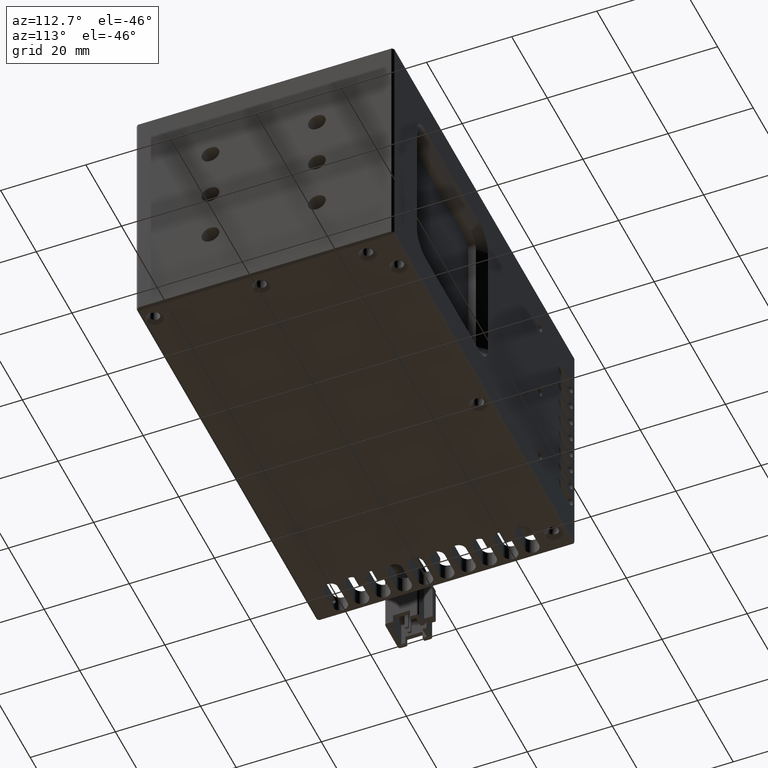
[diagram: clean part render]
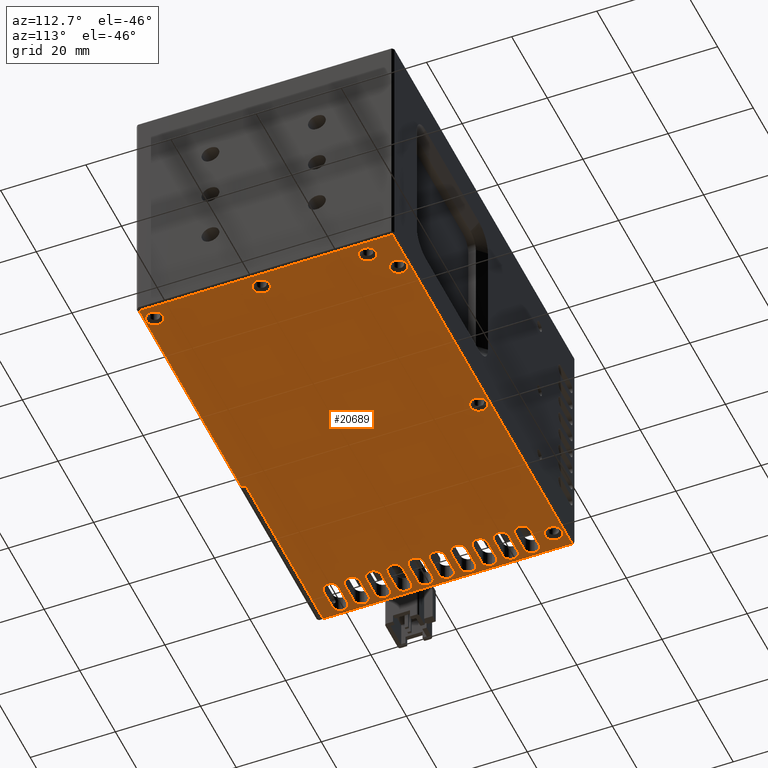
[diagram: same view with one face highlighted and labeled with its STEP entity id]
A machine part, auxiliary view. The second image highlights one B-rep face of the part: STEP entity #20689.
In plain terms, the highlighted planar face has unit normal (0, -0, 1).
Its self-contained STEP definition (entity closure, byte-faithful):
#267 = CIRCLE ( 'NONE', #56702, 1.750000000000001600 ) ;
#623 = DIRECTION ( 'NONE',  ( -0.0000000000000000000, -0.0000000000000000000, -1.000000000000000000 ) ) ;
#753 = AXIS2_PLACEMENT_3D ( 'NONE', #66108, #35379, #3601 ) ;
#942 = EDGE_CURVE ( 'NONE', #55779, #46142, #4437, .T. ) ;
#1028 = CARTESIAN_POINT ( 'NONE',  ( -68.07424922391150800, -6.223006669097374700, 9.533545556727335300E-012 ) ) ;
#1100 = DIRECTION ( 'NONE',  ( -0.0000000000000000000, -0.0000000000000000000, -1.000000000000000000 ) ) ;
#1269 = CARTESIAN_POINT ( 'NONE',  ( 32.92575077608847800, -7.223006669097346200, 9.549649598718879800E-012 ) ) ;
#1517 = VECTOR ( 'NONE', #17927, 1000.000000000000000 ) ;
#1585 = VECTOR ( 'NONE', #4886, 1000.000000000000000 ) ;
#1637 = DIRECTION ( 'NONE',  ( -0.0000000000000000000, -0.0000000000000000000, -1.000000000000000000 ) ) ;
#1683 = EDGE_CURVE ( 'NONE', #29605, #17996, #48271, .T. ) ;
#2033 = LINE ( 'NONE', #61198, #42651 ) ;
#2352 = VERTEX_POINT ( 'NONE', #14148 ) ;
#2480 = DIRECTION ( 'NONE',  ( -1.000000000000000000, 0.0000000000000000000, 0.0000000000000000000 ) ) ;
#2503 = CARTESIAN_POINT ( 'NONE',  ( -60.57424922391150800, 30.52599333090263700, 9.549652735252323100E-012 ) ) ;
#2550 = EDGE_CURVE ( 'NONE', #10588, #12224, #54571, .T. ) ;
#2566 = DIRECTION ( 'NONE',  ( 0.0000000000000000000, 0.0000000000000000000, -1.000000000000000000 ) ) ;
#2744 = VECTOR ( 'NONE', #6374, 1000.000000000000000 ) ;
#2750 = DIRECTION ( 'NONE',  ( -1.000000000000000000, 0.0000000000000000000, 0.0000000000000000000 ) ) ;
#2850 = EDGE_CURVE ( 'NONE', #59044, #53423, #51195, .T. ) ;
#2925 = EDGE_LOOP ( 'NONE', ( #24620, #66011, #63525, #28401, #41255 ) ) ;
#2929 = FACE_BOUND ( 'NONE', #62688, .T. ) ;
#3241 = LINE ( 'NONE', #26027, #1585 ) ;
#3327 = CARTESIAN_POINT ( 'NONE',  ( -60.57424922391150800, 12.02599333090263300, 9.549652735252323100E-012 ) ) ;
#3351 = VECTOR ( 'NONE', #52344, 1000.000000000000000 ) ;
#3458 = VERTEX_POINT ( 'NONE', #19029 ) ;
#3553 = LINE ( 'NONE', #15071, #59944 ) ;
#3601 = DIRECTION ( 'NONE',  ( -1.000000000000000000, 0.0000000000000000000, 0.0000000000000000000 ) ) ;
#3691 = VERTEX_POINT ( 'NONE', #68624 ) ;
#3858 = DIRECTION ( 'NONE',  ( -0.0000000000000000000, -0.0000000000000000000, -1.000000000000000000 ) ) ;
#4203 = DIRECTION ( 'NONE',  ( 1.000000000000000000, 0.0000000000000000000, -0.0000000000000000000 ) ) ;
#4221 = DIRECTION ( 'NONE',  ( -1.000000000000000000, -0.0000000000000000000, 0.0000000000000000000 ) ) ;
#4249 = VECTOR ( 'NONE', #42684, 1000.000000000000000 ) ;
#4316 = EDGE_CURVE ( 'NONE', #17996, #26201, #28529, .T. ) ;
#4322 = EDGE_CURVE ( 'NONE', #45477, #20638, #267, .T. ) ;
#4437 = LINE ( 'NONE', #64472, #2744 ) ;
#4555 = DIRECTION ( 'NONE',  ( -0.0000000000000000000, -0.0000000000000000000, -1.000000000000000000 ) ) ;
#4619 = FACE_BOUND ( 'NONE', #30308, .T. ) ;
#4680 = CARTESIAN_POINT ( 'NONE',  ( -65.57424922391152200, 43.77599333090263700, 9.549652735252323100E-012 ) ) ;
#4681 = VERTEX_POINT ( 'NONE', #21562 ) ;
#4886 = DIRECTION ( 'NONE',  ( -1.000000000000000000, -0.0000000000000000000, 0.0000000000000000000 ) ) ;
#4941 = DIRECTION ( 'NONE',  ( -1.000000000000000000, 0.0000000000000000000, 0.0000000000000000000 ) ) ;
#5003 = CARTESIAN_POINT ( 'NONE',  ( 33.42575077608847800, 30.52599333090263700, 9.549652735252323100E-012 ) ) ;
#5240 = ORIENTED_EDGE ( 'NONE', *, *, #1683, .F. ) ;
#5348 = CARTESIAN_POINT ( 'NONE',  ( 33.42575077608847800, -7.223006669097340900, 9.549652735252323100E-012 ) ) ;
#5393 = EDGE_LOOP ( 'NONE', ( #22655, #53234, #17202, #32842, #47921 ) ) ;
#5615 = AXIS2_PLACEMENT_3D ( 'NONE', #11265, #48338, #16612 ) ;
#5814 = ORIENTED_EDGE ( 'NONE', *, *, #59634, .F. ) ;
#5881 = CARTESIAN_POINT ( 'NONE',  ( -60.57424922391152200, 43.77599333090263700, 9.549652735252323100E-012 ) ) ;
#6099 = AXIS2_PLACEMENT_3D ( 'NONE', #26971, #63939, #32310 ) ;
#6306 = FACE_BOUND ( 'NONE', #59860, .T. ) ;
#6374 = DIRECTION ( 'NONE',  ( 1.000000000000000000, 0.0000000000000000000, -0.0000000000000000000 ) ) ;
#6607 = DIRECTION ( 'NONE',  ( 0.0000000000000000000, 0.0000000000000000000, -1.000000000000000000 ) ) ;
#6689 = AXIS2_PLACEMENT_3D ( 'NONE', #20414, #57332, #25745 ) ;
#6810 = CARTESIAN_POINT ( 'NONE',  ( 29.42575077608847100, 20.02699333090263400, 9.549652735252323100E-012 ) ) ;
#7153 = CARTESIAN_POINT ( 'NONE',  ( 31.42575077600345100, -4.973006669097366700, 9.549652735252323100E-012 ) ) ;
#7241 = CIRCLE ( 'NONE', #53216, 1.750000000000001600 ) ;
#7382 = EDGE_CURVE ( 'NONE', #54615, #34028, #14279, .T. ) ;
#7575 = EDGE_CURVE ( 'NONE', #36360, #43227, #17591, .T. ) ;
#7586 = CARTESIAN_POINT ( 'NONE',  ( -65.57424922391152200, 2.025993330902632100, 9.547050650038357800E-012 ) ) ;
#7690 = AXIS2_PLACEMENT_3D ( 'NONE', #55993, #24375, #61339 ) ;
#7713 = EDGE_CURVE ( 'NONE', #51562, #38337, #19223, .T. ) ;
#7824 = ORIENTED_EDGE ( 'NONE', *, *, #7382, .F. ) ;
#8075 = AXIS2_PLACEMENT_3D ( 'NONE', #47694, #15949, #52983 ) ;
#8123 = CIRCLE ( 'NONE', #14190, 1.750000000000001600 ) ;
#8278 = LINE ( 'NONE', #67654, #34854 ) ;
#8352 = EDGE_LOOP ( 'NONE', ( #64469, #46549, #31768, #10179, #49542 ) ) ;
#8439 = ORIENTED_EDGE ( 'NONE', *, *, #37372, .F. ) ;
#8567 = CIRCLE ( 'NONE', #8075, 1.750000000000001600 ) ;
#8569 = DIRECTION ( 'NONE',  ( -1.000000000000000000, -0.0000000000000000000, 0.0000000000000000000 ) ) ;
#8665 = CARTESIAN_POINT ( 'NONE',  ( -65.57424922391152200, 28.77599333090263700, 9.547918011776346200E-012 ) ) ;
#8979 = EDGE_CURVE ( 'NONE', #46945, #23181, #19878, .T. ) ;
#9085 = CIRCLE ( 'NONE', #54839, 1.750000000000001600 ) ;
#9102 = CARTESIAN_POINT ( 'NONE',  ( -60.57424922391150800, 20.52599333090263300, 9.549652735252323100E-012 ) ) ;
#9104 = ORIENTED_EDGE ( 'NONE', *, *, #21861, .F. ) ;
#9383 = CARTESIAN_POINT ( 'NONE',  ( -65.57424922391152200, 7.025993330902629500, 9.547918011776346200E-012 ) ) ;
#9571 = CARTESIAN_POINT ( 'NONE',  ( -65.57424922391152200, 38.77599333090265100, 9.549652735252323100E-012 ) ) ;
#9700 = ORIENTED_EDGE ( 'NONE', *, *, #14461, .F. ) ;
#9712 = CIRCLE ( 'NONE', #19497, 1.750000000000001600 ) ;
#9897 = AXIS2_PLACEMENT_3D ( 'NONE', #49309, #17623, #54643 ) ;
#10012 = DIRECTION ( 'NONE',  ( -1.000000000000000000, 0.0000000000000000000, 0.0000000000000000000 ) ) ;
#10111 = VECTOR ( 'NONE', #16703, 1000.000000000000000 ) ;
#10121 = ORIENTED_EDGE ( 'NONE', *, *, #63739, .F. ) ;
#10160 = CARTESIAN_POINT ( 'NONE',  ( -65.57424922391152200, 32.02599333090262900, 9.548785373514334700E-012 ) ) ;
#10179 = ORIENTED_EDGE ( 'NONE', *, *, #40360, .F. ) ;
#10292 = EDGE_CURVE ( 'NONE', #36276, #33469, #65688, .T. ) ;
#10493 = DIRECTION ( 'NONE',  ( 1.000000000000000000, 0.0000000000000000000, -0.0000000000000000000 ) ) ;
#10501 = VECTOR ( 'NONE', #27479, 1000.000000000000000 ) ;
#10588 = VERTEX_POINT ( 'NONE', #35153 ) ;
#10597 = CIRCLE ( 'NONE', #36223, 1.999999999875865100 ) ;
#10614 = CARTESIAN_POINT ( 'NONE',  ( -60.57424922391150800, 25.52599333090264000, 9.549652735252323100E-012 ) ) ;
#11101 = ORIENTED_EDGE ( 'NONE', *, *, #60726, .F. ) ;
#11122 = DIRECTION ( 'NONE',  ( -0.0000000000000000000, -0.0000000000000000000, -1.000000000000000000 ) ) ;
#11126 = DIRECTION ( 'NONE',  ( -0.0000000000000000000, -0.0000000000000000000, -1.000000000000000000 ) ) ;
#11155 = DIRECTION ( 'NONE',  ( -1.000000000000000000, 0.0000000000000000000, 0.0000000000000000000 ) ) ;
#11265 = CARTESIAN_POINT ( 'NONE',  ( -60.57424922391150800, 23.77599333090263700, 9.549652735252323100E-012 ) ) ;
#11429 = EDGE_CURVE ( 'NONE', #43975, #64879, #59957, .T. ) ;
#11517 = AXIS2_PLACEMENT_3D ( 'NONE', #38362, #6607, #43640 ) ;
#11520 = EDGE_CURVE ( 'NONE', #31445, #52103, #54077, .T. ) ;
#11541 = AXIS2_PLACEMENT_3D ( 'NONE', #5881, #42896, #11155 ) ;
#11591 = EDGE_LOOP ( 'NONE', ( #40319, #67665, #27790, #33439, #59176, #65654 ) ) ;
#11982 = LINE ( 'NONE', #26326, #38532 ) ;
#12049 = VERTEX_POINT ( 'NONE', #7586 ) ;
#12078 = EDGE_LOOP ( 'NONE', ( #13416, #51628 ) ) ;
#12112 = DIRECTION ( 'NONE',  ( -1.000000000000000000, 0.0000000000000000000, 0.0000000000000000000 ) ) ;
#12224 = VERTEX_POINT ( 'NONE', #18878 ) ;
#12280 = DIRECTION ( 'NONE',  ( -0.0000000000000000000, -0.0000000000000000000, -1.000000000000000000 ) ) ;
#12286 = CARTESIAN_POINT ( 'NONE',  ( 33.42575077608847800, 42.02599333090263700, 9.549652735252323100E-012 ) ) ;
#12457 = AXIS2_PLACEMENT_3D ( 'NONE', #55480, #23839, #60785 ) ;
#12506 = CARTESIAN_POINT ( 'NONE',  ( -65.57424922391152200, 42.02599333090263700, 9.549652735252323100E-012 ) ) ;
#12515 = EDGE_CURVE ( 'NONE', #57819, #4681, #3241, .T. ) ;
#12540 = CARTESIAN_POINT ( 'NONE',  ( 33.42575077608847800, 2.025993330902632100, 9.549652735252323100E-012 ) ) ;
#12645 = AXIS2_PLACEMENT_3D ( 'NONE', #23314, #60274, #28553 ) ;
#12838 = CARTESIAN_POINT ( 'NONE',  ( -23.57424922387105300, 49.77699333090261300, 6.639307159606033800E-011 ) ) ;
#12997 = DIRECTION ( 'NONE',  ( 0.0000000000000000000, 0.0000000000000000000, -1.000000000000000000 ) ) ;
#13104 = DIRECTION ( 'NONE',  ( -1.224646799147353500E-016, 1.000000000000000000, 0.0000000000000000000 ) ) ;
#13230 = VERTEX_POINT ( 'NONE', #1028 ) ;
#13267 = DIRECTION ( 'NONE',  ( 1.000000000000000000, 0.0000000000000000000, -0.0000000000000000000 ) ) ;
#13327 = EDGE_CURVE ( 'NONE', #54412, #26223, #60932, .T. ) ;
#13416 = ORIENTED_EDGE ( 'NONE', *, *, #13327, .F. ) ;
#13731 = CIRCLE ( 'NONE', #24533, 1.750000000000001600 ) ;
#13949 = VECTOR ( 'NONE', #22558, 1000.000000000000000 ) ;
#13995 = DIRECTION ( 'NONE',  ( -1.000000000000000000, 0.0000000000000000000, 0.0000000000000000000 ) ) ;
#14068 = EDGE_CURVE ( 'NONE', #64289, #24118, #3553, .T. ) ;
#14148 = CARTESIAN_POINT ( 'NONE',  ( -67.32424922391152200, 13.77599333090263500, 9.546183288300369400E-012 ) ) ;
#14190 = AXIS2_PLACEMENT_3D ( 'NONE', #31486, #68453, #36787 ) ;
#14279 = CIRCLE ( 'NONE', #16729, 1.999999999959541000 ) ;
#14461 = EDGE_CURVE ( 'NONE', #52432, #3691, #25204, .T. ) ;
#14630 = CARTESIAN_POINT ( 'NONE',  ( -60.57424922391150800, 5.525993330902634800, 9.549652735252323100E-012 ) ) ;
#14796 = ORIENTED_EDGE ( 'NONE', *, *, #24112, .F. ) ;
#14928 = DIRECTION ( 'NONE',  ( -1.000000000000000000, 0.0000000000000000000, 0.0000000000000000000 ) ) ;
#14982 = EDGE_CURVE ( 'NONE', #51055, #30000, #34150, .T. ) ;
#15071 = CARTESIAN_POINT ( 'NONE',  ( 32.92575077608847800, 52.77699333090263400, 9.549652735252323100E-012 ) ) ;
#15197 = EDGE_CURVE ( 'NONE', #33230, #17917, #33238, .T. ) ;
#15626 = CIRCLE ( 'NONE', #32279, 1.999999999914969100 ) ;
#15685 = CARTESIAN_POINT ( 'NONE',  ( -65.57424922391152200, 25.52599333090264000, 9.548785373514334700E-012 ) ) ;
#15861 = CARTESIAN_POINT ( 'NONE',  ( -67.32424922391152200, 8.775993330902631200, 9.546183288300369400E-012 ) ) ;
#15949 = DIRECTION ( 'NONE',  ( -0.0000000000000000000, -0.0000000000000000000, -1.000000000000000000 ) ) ;
#15993 = DIRECTION ( 'NONE',  ( 1.000000000000000000, 0.0000000000000000000, -0.0000000000000000000 ) ) ;
#16048 = ORIENTED_EDGE ( 'NONE', *, *, #32048, .F. ) ;
#16123 = CARTESIAN_POINT ( 'NONE',  ( -65.57424922391152200, 37.02599333090262900, 9.549652735252323100E-012 ) ) ;
#16364 = ORIENTED_EDGE ( 'NONE', *, *, #64023, .F. ) ;
#16405 = VERTEX_POINT ( 'NONE', #15861 ) ;
#16456 = CARTESIAN_POINT ( 'NONE',  ( 33.42575077608847800, 12.02599333090263300, 9.549652735252323100E-012 ) ) ;
#16612 = DIRECTION ( 'NONE',  ( -1.000000000000000000, 0.0000000000000000000, 0.0000000000000000000 ) ) ;
#16703 = DIRECTION ( 'NONE',  ( -1.000000000000000000, -0.0000000000000000000, 0.0000000000000000000 ) ) ;
#16706 = VECTOR ( 'NONE', #21029, 1000.000000000000000 ) ;
#16711 = CARTESIAN_POINT ( 'NONE',  ( -60.57424922391152200, 45.52599333090263700, 9.549652735252323100E-012 ) ) ;
#16729 = AXIS2_PLACEMENT_3D ( 'NONE', #34379, #2566, #39682 ) ;
#16746 = ORIENTED_EDGE ( 'NONE', *, *, #8979, .F. ) ;
#16949 = VERTEX_POINT ( 'NONE', #58369 ) ;
#17080 = FACE_BOUND ( 'NONE', #5393, .T. ) ;
#17117 = EDGE_CURVE ( 'NONE', #56296, #51055, #32839, .T. ) ;
#17202 = ORIENTED_EDGE ( 'NONE', *, *, #4322, .F. ) ;
#17228 = CIRCLE ( 'NONE', #31053, 1.750000000000001600 ) ;
#17523 = VECTOR ( 'NONE', #48195, 1000.000000000000000 ) ;
#17591 = CIRCLE ( 'NONE', #43793, 1.750000000000001600 ) ;
#17623 = DIRECTION ( 'NONE',  ( 0.0000000000000000000, -0.0000000000000000000, 1.000000000000000000 ) ) ;
#17748 = EDGE_CURVE ( 'NONE', #55276, #16405, #25350, .T. ) ;
#17874 = CARTESIAN_POINT ( 'NONE',  ( -60.57424922391149400, 0.5259933309026375600, 9.549652735252323100E-012 ) ) ;
#17912 = ORIENTED_EDGE ( 'NONE', *, *, #7575, .F. ) ;
#17917 = VERTEX_POINT ( 'NONE', #16123 ) ;
#17927 = DIRECTION ( 'NONE',  ( -1.000000000000000000, -0.0000000000000000000, 0.0000000000000000000 ) ) ;
#17996 = VERTEX_POINT ( 'NONE', #38159 ) ;
#18360 = EDGE_CURVE ( 'NONE', #51778, #45477, #44948, .T. ) ;
#18774 = FACE_BOUND ( 'NONE', #60202, .T. ) ;
#18878 = CARTESIAN_POINT ( 'NONE',  ( -60.57424922391152200, 40.52599333090263700, 9.549652735252323100E-012 ) ) ;
#19029 = CARTESIAN_POINT ( 'NONE',  ( -61.57424922403564700, 49.77699333090261300, 9.549652735252323100E-012 ) ) ;
#19223 = LINE ( 'NONE', #16456, #17523 ) ;
#19279 = CIRCLE ( 'NONE', #25490, 1.750000000000001600 ) ;
#19497 = AXIS2_PLACEMENT_3D ( 'NONE', #60127, #28429, #65443 ) ;
#19757 = CARTESIAN_POINT ( 'NONE',  ( -63.57424922391151500, 49.77699333090261300, 9.549652735252323100E-012 ) ) ;
#19780 = CARTESIAN_POINT ( 'NONE',  ( -60.57424922391150800, 7.025993330902629500, 9.549652735252323100E-012 ) ) ;
#19817 = VECTOR ( 'NONE', #44571, 1000.000000000000000 ) ;
#19831 = CARTESIAN_POINT ( 'NONE',  ( -65.57424922391152200, 35.52599333090262900, 9.548785373514334700E-012 ) ) ;
#19878 = CIRCLE ( 'NONE', #44806, 1.999999999914969100 ) ;
#20345 = DIRECTION ( 'NONE',  ( 1.000000000000000000, 0.0000000000000000000, -0.0000000000000000000 ) ) ;
#20414 = CARTESIAN_POINT ( 'NONE',  ( -60.57424922391149400, -1.224006669097364100, 9.549652735252323100E-012 ) ) ;
#20429 = VERTEX_POINT ( 'NONE', #51868 ) ;
#20452 = FACE_OUTER_BOUND ( 'NONE', #11591, .T. ) ;
#20563 = EDGE_CURVE ( 'NONE', #42453, #64289, #58445, .T. ) ;
#20638 = VERTEX_POINT ( 'NONE', #64351 ) ;
#20663 = ORIENTED_EDGE ( 'NONE', *, *, #2550, .F. ) ;
#20667 = CARTESIAN_POINT ( 'NONE',  ( 33.42575077608847800, 32.02599333090262900, 9.549652735252323100E-012 ) ) ;
#20689 = ADVANCED_FACE ( 'NONE', ( #20452, #34509, #62596, #6306, #60977, #46907, #32865, #18774, #4619, #59336, #45244, #31182, #17080, #2929, #57603, #43555, #29528 ), #48865, .F. ) ;
#20698 = ORIENTED_EDGE ( 'NONE', *, *, #46943, .F. ) ;
#21029 = DIRECTION ( 'NONE',  ( -0.0000000000000000000, -1.000000000000000000, -0.0000000000000000000 ) ) ;
#21127 = CARTESIAN_POINT ( 'NONE',  ( -60.57424922391152200, 37.02599333090262900, 9.549652735252323100E-012 ) ) ;
#21309 = VERTEX_POINT ( 'NONE', #23605 ) ;
#21471 = LINE ( 'NONE', #60355, #19817 ) ;
#21562 = CARTESIAN_POINT ( 'NONE',  ( -65.57424922391152200, 27.02599333090263300, 9.548785373514334700E-012 ) ) ;
#21624 = ORIENTED_EDGE ( 'NONE', *, *, #17748, .F. ) ;
#21650 = EDGE_CURVE ( 'NONE', #3691, #52432, #40722, .T. ) ;
#21678 = CARTESIAN_POINT ( 'NONE',  ( -65.57424922391152200, 17.02599333090263300, 9.547918011776346200E-012 ) ) ;
#21861 = EDGE_CURVE ( 'NONE', #21309, #56169, #30951, .T. ) ;
#21863 = CARTESIAN_POINT ( 'NONE',  ( -65.57424922391152200, 18.77599333090263300, 9.546183288300369400E-012 ) ) ;
#22107 = CARTESIAN_POINT ( 'NONE',  ( 33.42575077608847800, 22.02599333090263300, 9.549652735252323100E-012 ) ) ;
#22139 = EDGE_LOOP ( 'NONE', ( #16746, #36340 ) ) ;
#22173 = CARTESIAN_POINT ( 'NONE',  ( 33.42575077608847800, 10.52599333090263300, 9.549652735252323100E-012 ) ) ;
#22468 = CARTESIAN_POINT ( 'NONE',  ( -65.57424922391152200, 38.77599333090265100, 9.549652735252323100E-012 ) ) ;
#22558 = DIRECTION ( 'NONE',  ( 1.000000000000000000, 0.0000000000000000000, -0.0000000000000000000 ) ) ;
#22634 = CARTESIAN_POINT ( 'NONE',  ( -60.57424922391152200, 38.77599333090265100, 9.549652735252323100E-012 ) ) ;
#22655 = ORIENTED_EDGE ( 'NONE', *, *, #10292, .F. ) ;
#22851 = CARTESIAN_POINT ( 'NONE',  ( -60.57424922391150800, 2.025993330902632100, 9.549652735252323100E-012 ) ) ;
#22916 = CARTESIAN_POINT ( 'NONE',  ( -65.57424922391152200, 10.52599333090263300, 9.547918011776346200E-012 ) ) ;
#23010 = VERTEX_POINT ( 'NONE', #63412 ) ;
#23051 = DIRECTION ( 'NONE',  ( 0.0000000000000000000, 0.0000000000000000000, -1.000000000000000000 ) ) ;
#23132 = LINE ( 'NONE', #51962, #51175 ) ;
#23181 = VERTEX_POINT ( 'NONE', #7153 ) ;
#23294 = DIRECTION ( 'NONE',  ( -0.0000000000000000000, -0.0000000000000000000, -1.000000000000000000 ) ) ;
#23314 = CARTESIAN_POINT ( 'NONE',  ( -60.57424922391150800, 13.77599333090263500, 9.549652735252323100E-012 ) ) ;
#23605 = CARTESIAN_POINT ( 'NONE',  ( -65.57424922391150800, 0.5259933309026375600, 9.547050650038357800E-012 ) ) ;
#23627 = CARTESIAN_POINT ( 'NONE',  ( -24.57424922391152200, -6.223006669097355100, 9.544448564824392600E-012 ) ) ;
#23809 = EDGE_LOOP ( 'NONE', ( #43839, #9104, #65300, #10121, #60875 ) ) ;
#23839 = DIRECTION ( 'NONE',  ( 0.0000000000000000000, 0.0000000000000000000, -1.000000000000000000 ) ) ;
#24069 = VECTOR ( 'NONE', #8569, 1000.000000000000000 ) ;
#24112 = EDGE_CURVE ( 'NONE', #26201, #29474, #11982, .T. ) ;
#24118 = VERTEX_POINT ( 'NONE', #52861 ) ;
#24375 = DIRECTION ( 'NONE',  ( -0.0000000000000000000, -0.0000000000000000000, -1.000000000000000000 ) ) ;
#24449 = DIRECTION ( 'NONE',  ( -1.000000000000000000, -0.0000000000000000000, 0.0000000000000000000 ) ) ;
#24450 = VERTEX_POINT ( 'NONE', #45187 ) ;
#24533 = AXIS2_PLACEMENT_3D ( 'NONE', #24761, #61716, #30039 ) ;
#24620 = ORIENTED_EDGE ( 'NONE', *, *, #67125, .F. ) ;
#24656 = CIRCLE ( 'NONE', #34951, 1.999999999875865100 ) ;
#24681 = LINE ( 'NONE', #22173, #10501 ) ;
#24761 = CARTESIAN_POINT ( 'NONE',  ( -65.57424922391152200, 13.77599333090263500, 9.546183288300369400E-012 ) ) ;
#24809 = AXIS2_PLACEMENT_3D ( 'NONE', #8665, #45757, #13995 ) ;
#24907 = EDGE_CURVE ( 'NONE', #66380, #55779, #39763, .T. ) ;
#25080 = DIRECTION ( 'NONE',  ( -1.000000000000000000, 0.0000000000000000000, 0.0000000000000000000 ) ) ;
#25204 = CIRCLE ( 'NONE', #57764, 1.999999999914958700 ) ;
#25350 = CIRCLE ( 'NONE', #63879, 1.750000000000001600 ) ;
#25458 = CARTESIAN_POINT ( 'NONE',  ( -65.57424922391152200, 3.775993330902633400, 9.544448564824392600E-012 ) ) ;
#25490 = AXIS2_PLACEMENT_3D ( 'NONE', #25458, #62391, #30739 ) ;
#25745 = DIRECTION ( 'NONE',  ( -1.000000000000000000, 0.0000000000000000000, 0.0000000000000000000 ) ) ;
#25770 = ORIENTED_EDGE ( 'NONE', *, *, #7713, .F. ) ;
#25899 = EDGE_CURVE ( 'NONE', #39165, #52730, #24681, .T. ) ;
#25980 = DIRECTION ( 'NONE',  ( -1.000000000000000000, -0.0000000000000000000, 0.0000000000000000000 ) ) ;
#26027 = CARTESIAN_POINT ( 'NONE',  ( 33.42575077608847800, 27.02599333090263300, 9.549652735252323100E-012 ) ) ;
#26052 = CARTESIAN_POINT ( 'NONE',  ( 33.42575077608847800, 5.525993330902634800, 9.549652735252323100E-012 ) ) ;
#26201 = VERTEX_POINT ( 'NONE', #56970 ) ;
#26223 = VERTEX_POINT ( 'NONE', #68082 ) ;
#26326 = CARTESIAN_POINT ( 'NONE',  ( 33.42575077608847800, 45.52599333090263700, 9.549652735252323100E-012 ) ) ;
#26669 = ORIENTED_EDGE ( 'NONE', *, *, #36534, .F. ) ;
#26971 = CARTESIAN_POINT ( 'NONE',  ( 23.42575077608848800, 49.77699333090261300, -4.729376612555569200E-011 ) ) ;
#27144 = CIRCLE ( 'NONE', #65484, 1.750000000000001600 ) ;
#27194 = DIRECTION ( 'NONE',  ( -1.000000000000000000, 0.0000000000000000000, 0.0000000000000000000 ) ) ;
#27479 = DIRECTION ( 'NONE',  ( 1.000000000000000000, 0.0000000000000000000, -0.0000000000000000000 ) ) ;
#27732 = DIRECTION ( 'NONE',  ( -1.000000000000000000, 0.0000000000000000000, 0.0000000000000000000 ) ) ;
#27790 = ORIENTED_EDGE ( 'NONE', *, *, #29025, .F. ) ;
#27893 = DIRECTION ( 'NONE',  ( -1.000000000000000000, 0.0000000000000000000, 0.0000000000000000000 ) ) ;
#27955 = EDGE_LOOP ( 'NONE', ( #11101, #65053, #20698, #21624, #38089 ) ) ;
#28247 = LINE ( 'NONE', #39935, #56363 ) ;
#28401 = ORIENTED_EDGE ( 'NONE', *, *, #64497, .F. ) ;
#28429 = DIRECTION ( 'NONE',  ( -0.0000000000000000000, -0.0000000000000000000, -1.000000000000000000 ) ) ;
#28529 = CIRCLE ( 'NONE', #49643, 1.750000000000001600 ) ;
#28553 = DIRECTION ( 'NONE',  ( -1.000000000000000000, 0.0000000000000000000, 0.0000000000000000000 ) ) ;
#28696 = EDGE_CURVE ( 'NONE', #53423, #44423, #65604, .T. ) ;
#29025 = EDGE_CURVE ( 'NONE', #13230, #50940, #28247, .T. ) ;
#29118 = AXIS2_PLACEMENT_3D ( 'NONE', #68350, #36696, #4941 ) ;
#29180 = VERTEX_POINT ( 'NONE', #56780 ) ;
#29222 = EDGE_CURVE ( 'NONE', #50837, #57164, #8278, .T. ) ;
#29286 = CARTESIAN_POINT ( 'NONE',  ( -67.32424922391152200, 18.77599333090263300, 9.546183288300369400E-012 ) ) ;
#29297 = VECTOR ( 'NONE', #4203, 1000.000000000000000 ) ;
#29474 = VERTEX_POINT ( 'NONE', #16711 ) ;
#29528 = FACE_BOUND ( 'NONE', #23809, .T. ) ;
#29605 = VERTEX_POINT ( 'NONE', #12506 ) ;
#29748 = EDGE_CURVE ( 'NONE', #3458, #16949, #10597, .T. ) ;
#29760 = DIRECTION ( 'NONE',  ( -1.000000000000000000, -0.0000000000000000000, 0.0000000000000000000 ) ) ;
#30000 = VERTEX_POINT ( 'NONE', #10614 ) ;
#30039 = DIRECTION ( 'NONE',  ( -1.000000000000000000, 0.0000000000000000000, 0.0000000000000000000 ) ) ;
#30299 = VECTOR ( 'NONE', #15993, 1000.000000000000000 ) ;
#30306 = DIRECTION ( 'NONE',  ( -0.0000000000000000000, -0.0000000000000000000, -1.000000000000000000 ) ) ;
#30308 = EDGE_LOOP ( 'NONE', ( #34278, #20663, #59418, #43629, #50970 ) ) ;
#30472 = EDGE_CURVE ( 'NONE', #26223, #54412, #35757, .T. ) ;
#30550 = DIRECTION ( 'NONE',  ( -0.0000000000000000000, -0.0000000000000000000, -1.000000000000000000 ) ) ;
#30611 = CIRCLE ( 'NONE', #58376, 1.750000000000001600 ) ;
#30739 = DIRECTION ( 'NONE',  ( -1.000000000000000000, 0.0000000000000000000, 0.0000000000000000000 ) ) ;
#30846 = CIRCLE ( 'NONE', #54564, 1.750000000000001600 ) ;
#30860 = CARTESIAN_POINT ( 'NONE',  ( -65.57424922391152200, 3.775993330902633400, 9.544448564824392600E-012 ) ) ;
#30892 = DIRECTION ( 'NONE',  ( 0.0000000000000000000, 0.0000000000000000000, -1.000000000000000000 ) ) ;
#30907 = DIRECTION ( 'NONE',  ( -0.0000000000000000000, -0.0000000000000000000, -1.000000000000000000 ) ) ;
#30951 = LINE ( 'NONE', #41274, #29297 ) ;
#31053 = AXIS2_PLACEMENT_3D ( 'NONE', #22468, #59439, #27732 ) ;
#31156 = VERTEX_POINT ( 'NONE', #39819 ) ;
#31182 = FACE_BOUND ( 'NONE', #65014, .T. ) ;
#31445 = VERTEX_POINT ( 'NONE', #41390 ) ;
#31486 = CARTESIAN_POINT ( 'NONE',  ( -65.57424922391152200, 8.775993330902631200, 9.546183288300369400E-012 ) ) ;
#31556 = EDGE_CURVE ( 'NONE', #17917, #24450, #17228, .T. ) ;
#31768 = ORIENTED_EDGE ( 'NONE', *, *, #24907, .F. ) ;
#31991 = ORIENTED_EDGE ( 'NONE', *, *, #42287, .F. ) ;
#32048 = EDGE_CURVE ( 'NONE', #29474, #29180, #61786, .T. ) ;
#32091 = ORIENTED_EDGE ( 'NONE', *, *, #4316, .F. ) ;
#32093 = CARTESIAN_POINT ( 'NONE',  ( 33.42575077608847800, 25.52599333090264000, 9.549652735252323100E-012 ) ) ;
#32279 = AXIS2_PLACEMENT_3D ( 'NONE', #44726, #12997, #50057 ) ;
#32310 = DIRECTION ( 'NONE',  ( -1.000000000000000000, 0.0000000000000000000, 0.0000000000000000000 ) ) ;
#32443 = CARTESIAN_POINT ( 'NONE',  ( -60.57424922391150800, 18.77599333090263300, 9.549652735252323100E-012 ) ) ;
#32783 = ORIENTED_EDGE ( 'NONE', *, *, #17117, .F. ) ;
#32800 = VERTEX_POINT ( 'NONE', #64428 ) ;
#32839 = CIRCLE ( 'NONE', #46578, 1.750000000000001600 ) ;
#32842 = ORIENTED_EDGE ( 'NONE', *, *, #18360, .F. ) ;
#32865 = FACE_BOUND ( 'NONE', #12078, .T. ) ;
#32929 = CARTESIAN_POINT ( 'NONE',  ( -60.57424922391152200, 33.77599333090262900, 9.549652735252323100E-012 ) ) ;
#33230 = VERTEX_POINT ( 'NONE', #21127 ) ;
#33238 = LINE ( 'NONE', #56077, #61342 ) ;
#33436 = CARTESIAN_POINT ( 'NONE',  ( -60.57424922391150800, 3.775993330902633400, 9.549652735252323100E-012 ) ) ;
#33439 = ORIENTED_EDGE ( 'NONE', *, *, #45101, .F. ) ;
#33469 = VERTEX_POINT ( 'NONE', #45132 ) ;
#33511 = EDGE_LOOP ( 'NONE', ( #65236, #61912 ) ) ;
#33580 = EDGE_CURVE ( 'NONE', #20638, #36276, #42343, .T. ) ;
#33630 = AXIS2_PLACEMENT_3D ( 'NONE', #66221, #34575, #2750 ) ;
#33715 = AXIS2_PLACEMENT_3D ( 'NONE', #35650, #3858, #40929 ) ;
#33731 = ORIENTED_EDGE ( 'NONE', *, *, #35692, .F. ) ;
#34028 = VERTEX_POINT ( 'NONE', #12838 ) ;
#34150 = LINE ( 'NONE', #32093, #4249 ) ;
#34278 = ORIENTED_EDGE ( 'NONE', *, *, #59561, .F. ) ;
#34292 = DIRECTION ( 'NONE',  ( 0.0000000000000000000, 0.0000000000000000000, -1.000000000000000000 ) ) ;
#34379 = CARTESIAN_POINT ( 'NONE',  ( -21.57424922391151200, 49.77699333090261300, 6.639307159606033800E-011 ) ) ;
#34509 = FACE_BOUND ( 'NONE', #59423, .T. ) ;
#34510 = EDGE_CURVE ( 'NONE', #46901, #51562, #40522, .T. ) ;
#34575 = DIRECTION ( 'NONE',  ( 0.0000000000000000000, 0.0000000000000000000, -1.000000000000000000 ) ) ;
#34665 = VECTOR ( 'NONE', #13104, 1000.000000000000000 ) ;
#34784 = ORIENTED_EDGE ( 'NONE', *, *, #21650, .F. ) ;
#34854 = VECTOR ( 'NONE', #4221, 1000.000000000000000 ) ;
#34951 = AXIS2_PLACEMENT_3D ( 'NONE', #54694, #23051, #60012 ) ;
#35005 = EDGE_CURVE ( 'NONE', #46142, #52561, #27144, .T. ) ;
#35153 = CARTESIAN_POINT ( 'NONE',  ( -65.57424922391152200, 40.52599333090263700, 9.549652735252323100E-012 ) ) ;
#35379 = DIRECTION ( 'NONE',  ( 0.0000000000000000000, 0.0000000000000000000, -1.000000000000000000 ) ) ;
#35650 = CARTESIAN_POINT ( 'NONE',  ( -65.57424922391152200, 33.77599333090262900, 9.547918011776346200E-012 ) ) ;
#35658 = CARTESIAN_POINT ( 'NONE',  ( 33.42575077608847800, 20.52599333090263300, 9.549652735252323100E-012 ) ) ;
#35692 = EDGE_CURVE ( 'NONE', #34028, #54615, #66577, .T. ) ;
#35757 = CIRCLE ( 'NONE', #6099, 2.000000000000466700 ) ;
#35868 = DIRECTION ( 'NONE',  ( 1.000000000000000000, 0.0000000000000000000, -0.0000000000000000000 ) ) ;
#36166 = DIRECTION ( 'NONE',  ( -1.000000000000000000, 0.0000000000000000000, 0.0000000000000000000 ) ) ;
#36190 = AXIS2_PLACEMENT_3D ( 'NONE', #6810, #43833, #12112 ) ;
#36223 = AXIS2_PLACEMENT_3D ( 'NONE', #19757, #56685, #25080 ) ;
#36276 = VERTEX_POINT ( 'NONE', #9102 ) ;
#36304 = CARTESIAN_POINT ( 'NONE',  ( -65.57424922391150800, -1.224006669097364100, 9.544448564824392600E-012 ) ) ;
#36340 = ORIENTED_EDGE ( 'NONE', *, *, #59671, .F. ) ;
#36360 = VERTEX_POINT ( 'NONE', #36444 ) ;
#36444 = CARTESIAN_POINT ( 'NONE',  ( -67.32424922391152200, 3.775993330902633400, 9.544448564824392600E-012 ) ) ;
#36501 = CIRCLE ( 'NONE', #6689, 1.750000000000001600 ) ;
#36534 = EDGE_CURVE ( 'NONE', #23010, #32800, #66435, .T. ) ;
#36696 = DIRECTION ( 'NONE',  ( -0.0000000000000000000, -0.0000000000000000000, -1.000000000000000000 ) ) ;
#36787 = DIRECTION ( 'NONE',  ( -1.000000000000000000, 0.0000000000000000000, 0.0000000000000000000 ) ) ;
#36985 = DIRECTION ( 'NONE',  ( 1.000000000000000000, 0.0000000000000000000, -0.0000000000000000000 ) ) ;
#36993 = AXIS2_PLACEMENT_3D ( 'NONE', #4680, #41725, #10012 ) ;
#37372 = EDGE_CURVE ( 'NONE', #40004, #46901, #23132, .T. ) ;
#37696 = ORIENTED_EDGE ( 'NONE', *, *, #67627, .F. ) ;
#37752 = DIRECTION ( 'NONE',  ( -1.000000000000000000, 0.0000000000000000000, 0.0000000000000000000 ) ) ;
#37790 = DIRECTION ( 'NONE',  ( -1.000000000000000000, -0.0000000000000000000, 0.0000000000000000000 ) ) ;
#37834 = ORIENTED_EDGE ( 'NONE', *, *, #14982, .F. ) ;
#38089 = ORIENTED_EDGE ( 'NONE', *, *, #50544, .F. ) ;
#38159 = CARTESIAN_POINT ( 'NONE',  ( -67.32424922391153600, 43.77599333090263700, 9.549652735252323100E-012 ) ) ;
#38234 = DIRECTION ( 'NONE',  ( -1.000000000000000000, 0.0000000000000000000, 0.0000000000000000000 ) ) ;
#38273 = EDGE_CURVE ( 'NONE', #42453, #50940, #48705, .T. ) ;
#38337 = VERTEX_POINT ( 'NONE', #51051 ) ;
#38362 = CARTESIAN_POINT ( 'NONE',  ( 29.42575077608846700, 45.02699333090264100, 9.549652735252323100E-012 ) ) ;
#38471 = AXIS2_PLACEMENT_3D ( 'NONE', #33436, #1637, #38731 ) ;
#38532 = VECTOR ( 'NONE', #10493, 1000.000000000000000 ) ;
#38602 = CARTESIAN_POINT ( 'NONE',  ( -67.32424922391152200, 28.77599333090263700, 9.547918011776346200E-012 ) ) ;
#38729 = CARTESIAN_POINT ( 'NONE',  ( -65.57424922391152200, 30.52599333090263700, 9.548785373514334700E-012 ) ) ;
#38731 = DIRECTION ( 'NONE',  ( -1.000000000000000000, 0.0000000000000000000, 0.0000000000000000000 ) ) ;
#39165 = VERTEX_POINT ( 'NONE', #22916 ) ;
#39682 = DIRECTION ( 'NONE',  ( -1.000000000000000000, 0.0000000000000000000, 0.0000000000000000000 ) ) ;
#39694 = AXIS2_PLACEMENT_3D ( 'NONE', #32443, #623, #37752 ) ;
#39763 = CIRCLE ( 'NONE', #7690, 1.750000000000001600 ) ;
#39819 = CARTESIAN_POINT ( 'NONE',  ( -67.32424922391150800, -1.224006669097364100, 9.544448564824392600E-012 ) ) ;
#39935 = CARTESIAN_POINT ( 'NONE',  ( 33.42575077608847800, -6.223006669097360400, 9.549652735252323100E-012 ) ) ;
#40004 = VERTEX_POINT ( 'NONE', #64115 ) ;
#40319 = ORIENTED_EDGE ( 'NONE', *, *, #20563, .F. ) ;
#40360 = EDGE_CURVE ( 'NONE', #62859, #66380, #44699, .T. ) ;
#40474 = CARTESIAN_POINT ( 'NONE',  ( -60.57424922391152200, 32.02599333090262900, 9.549652735252323100E-012 ) ) ;
#40522 = CIRCLE ( 'NONE', #12645, 1.750000000000001600 ) ;
#40540 = ORIENTED_EDGE ( 'NONE', *, *, #11520, .F. ) ;
#40722 = CIRCLE ( 'NONE', #36190, 1.999999999914958700 ) ;
#40740 = EDGE_CURVE ( 'NONE', #33469, #51778, #21471, .T. ) ;
#40747 = CIRCLE ( 'NONE', #5615, 1.750000000000001600 ) ;
#40891 = ORIENTED_EDGE ( 'NONE', *, *, #55931, .F. ) ;
#40929 = DIRECTION ( 'NONE',  ( -1.000000000000000000, 0.0000000000000000000, 0.0000000000000000000 ) ) ;
#40955 = EDGE_CURVE ( 'NONE', #24450, #10588, #7241, .T. ) ;
#41255 = ORIENTED_EDGE ( 'NONE', *, *, #12515, .F. ) ;
#41274 = CARTESIAN_POINT ( 'NONE',  ( 33.42575077608847800, 0.5259933309026375600, 9.549652735252323100E-012 ) ) ;
#41302 = CARTESIAN_POINT ( 'NONE',  ( -67.32424922391153600, 33.77599333090262900, 9.547918011776346200E-012 ) ) ;
#41390 = CARTESIAN_POINT ( 'NONE',  ( 31.42575077600342200, 45.02699333090264100, 9.549652735252323100E-012 ) ) ;
#41607 = DIRECTION ( 'NONE',  ( -1.000000000000000000, 0.0000000000000000000, 0.0000000000000000000 ) ) ;
#41725 = DIRECTION ( 'NONE',  ( -0.0000000000000000000, -0.0000000000000000000, -1.000000000000000000 ) ) ;
#41789 = CARTESIAN_POINT ( 'NONE',  ( -65.57424922391152200, 5.525993330902634800, 9.547050650038357800E-012 ) ) ;
#41974 = ORIENTED_EDGE ( 'NONE', *, *, #34510, .F. ) ;
#42287 = EDGE_CURVE ( 'NONE', #38337, #2352, #30846, .T. ) ;
#42343 = LINE ( 'NONE', #35658, #56404 ) ;
#42453 = VERTEX_POINT ( 'NONE', #54676 ) ;
#42651 = VECTOR ( 'NONE', #29760, 1000.000000000000000 ) ;
#42673 = EDGE_CURVE ( 'NONE', #56169, #50837, #36501, .T. ) ;
#42684 = DIRECTION ( 'NONE',  ( 1.000000000000000000, 0.0000000000000000000, -0.0000000000000000000 ) ) ;
#42856 = CARTESIAN_POINT ( 'NONE',  ( -65.57424922391152200, 13.77599333090263500, 9.546183288300369400E-012 ) ) ;
#42859 = CARTESIAN_POINT ( 'NONE',  ( -65.57424922391152200, 43.77599333090263700, 9.549652735252323100E-012 ) ) ;
#42894 = ORIENTED_EDGE ( 'NONE', *, *, #56249, .F. ) ;
#42896 = DIRECTION ( 'NONE',  ( -0.0000000000000000000, -0.0000000000000000000, -1.000000000000000000 ) ) ;
#43227 = VERTEX_POINT ( 'NONE', #41789 ) ;
#43387 = CARTESIAN_POINT ( 'NONE',  ( -60.57424922391150800, 27.02599333090263300, 9.549652735252323100E-012 ) ) ;
#43555 = FACE_BOUND ( 'NONE', #46133, .T. ) ;
#43629 = ORIENTED_EDGE ( 'NONE', *, *, #31556, .F. ) ;
#43640 = DIRECTION ( 'NONE',  ( -1.000000000000000000, 0.0000000000000000000, 0.0000000000000000000 ) ) ;
#43793 = AXIS2_PLACEMENT_3D ( 'NONE', #30860, #67867, #36166 ) ;
#43833 = DIRECTION ( 'NONE',  ( 0.0000000000000000000, 0.0000000000000000000, -1.000000000000000000 ) ) ;
#43839 = ORIENTED_EDGE ( 'NONE', *, *, #42673, .F. ) ;
#43869 = EDGE_CURVE ( 'NONE', #24118, #20429, #2033, .T. ) ;
#43974 = CARTESIAN_POINT ( 'NONE',  ( -65.57424922391152200, 23.77599333090263700, 9.547918011776346200E-012 ) ) ;
#43975 = VERTEX_POINT ( 'NONE', #14630 ) ;
#44423 = VERTEX_POINT ( 'NONE', #2503 ) ;
#44571 = DIRECTION ( 'NONE',  ( -1.000000000000000000, -0.0000000000000000000, 0.0000000000000000000 ) ) ;
#44699 = CIRCLE ( 'NONE', #33715, 1.750000000000001600 ) ;
#44726 = CARTESIAN_POINT ( 'NONE',  ( 29.42575077608848100, -4.973006669097366700, 9.549652735252323100E-012 ) ) ;
#44774 = EDGE_CURVE ( 'NONE', #30000, #23010, #40747, .T. ) ;
#44806 = AXIS2_PLACEMENT_3D ( 'NONE', #62553, #30892, #67899 ) ;
#44863 = LINE ( 'NONE', #52660, #16706 ) ;
#44948 = CIRCLE ( 'NONE', #64398, 1.750000000000001600 ) ;
#45101 = EDGE_CURVE ( 'NONE', #20429, #13230, #44863, .T. ) ;
#45132 = CARTESIAN_POINT ( 'NONE',  ( -60.57424922391150800, 17.02599333090263300, 9.549652735252323100E-012 ) ) ;
#45187 = CARTESIAN_POINT ( 'NONE',  ( -67.32424922391153600, 38.77599333090265100, 9.549652735252323100E-012 ) ) ;
#45244 = FACE_BOUND ( 'NONE', #2925, .T. ) ;
#45477 = VERTEX_POINT ( 'NONE', #29286 ) ;
#45494 = LINE ( 'NONE', #12540, #1517 ) ;
#45631 = CARTESIAN_POINT ( 'NONE',  ( -60.57424922391152200, 35.52599333090262900, 9.549652735252323100E-012 ) ) ;
#45757 = DIRECTION ( 'NONE',  ( -0.0000000000000000000, -0.0000000000000000000, -1.000000000000000000 ) ) ;
#45796 = VECTOR ( 'NONE', #37790, 1000.000000000000000 ) ;
#46133 = EDGE_LOOP ( 'NONE', ( #58637, #40891, #17912, #37696, #5814 ) ) ;
#46142 = VERTEX_POINT ( 'NONE', #45631 ) ;
#46423 = AXIS2_PLACEMENT_3D ( 'NONE', #54910, #23294, #60248 ) ;
#46549 = ORIENTED_EDGE ( 'NONE', *, *, #942, .F. ) ;
#46578 = AXIS2_PLACEMENT_3D ( 'NONE', #43974, #12280, #49321 ) ;
#46658 = DIRECTION ( 'NONE',  ( -0.0000000000000000000, -0.0000000000000000000, -1.000000000000000000 ) ) ;
#46740 = CARTESIAN_POINT ( 'NONE',  ( -60.57424922391150800, 15.52599333090263700, 9.549652735252323100E-012 ) ) ;
#46901 = VERTEX_POINT ( 'NONE', #46740 ) ;
#46907 = FACE_BOUND ( 'NONE', #51012, .T. ) ;
#46943 = EDGE_CURVE ( 'NONE', #16405, #39165, #8123, .T. ) ;
#46945 = VERTEX_POINT ( 'NONE', #68229 ) ;
#47273 = EDGE_CURVE ( 'NONE', #2352, #40004, #13731, .T. ) ;
#47694 = CARTESIAN_POINT ( 'NONE',  ( -60.57424922391150800, 28.77599333090263700, 9.549652735252323100E-012 ) ) ;
#47921 = ORIENTED_EDGE ( 'NONE', *, *, #40740, .F. ) ;
#48195 = DIRECTION ( 'NONE',  ( -1.000000000000000000, -0.0000000000000000000, 0.0000000000000000000 ) ) ;
#48220 = DIRECTION ( 'NONE',  ( -1.000000000000000000, 0.0000000000000000000, 0.0000000000000000000 ) ) ;
#48223 = DIRECTION ( 'NONE',  ( -1.000000000000000000, 0.0000000000000000000, 0.0000000000000000000 ) ) ;
#48271 = CIRCLE ( 'NONE', #36993, 1.750000000000001600 ) ;
#48338 = DIRECTION ( 'NONE',  ( -0.0000000000000000000, -0.0000000000000000000, -1.000000000000000000 ) ) ;
#48705 = LINE ( 'NONE', #23627, #34665 ) ;
#48865 = PLANE ( 'NONE',  #9897 ) ;
#49309 = CARTESIAN_POINT ( 'NONE',  ( 33.42575077608847800, 52.77699333090263400, 9.549652735252323100E-012 ) ) ;
#49321 = DIRECTION ( 'NONE',  ( -1.000000000000000000, 0.0000000000000000000, 0.0000000000000000000 ) ) ;
#49508 = ORIENTED_EDGE ( 'NONE', *, *, #47273, .F. ) ;
#49542 = ORIENTED_EDGE ( 'NONE', *, *, #54738, .F. ) ;
#49643 = AXIS2_PLACEMENT_3D ( 'NONE', #42859, #11126, #48223 ) ;
#49882 = AXIS2_PLACEMENT_3D ( 'NONE', #36304, #4555, #41607 ) ;
#50014 = CIRCLE ( 'NONE', #49882, 1.750000000000001600 ) ;
#50057 = DIRECTION ( 'NONE',  ( -1.000000000000000000, 0.0000000000000000000, 0.0000000000000000000 ) ) ;
#50544 = EDGE_CURVE ( 'NONE', #52102, #55276, #58164, .T. ) ;
#50837 = VERTEX_POINT ( 'NONE', #51109 ) ;
#50940 = VERTEX_POINT ( 'NONE', #67776 ) ;
#50970 = ORIENTED_EDGE ( 'NONE', *, *, #15197, .F. ) ;
#51012 = EDGE_LOOP ( 'NONE', ( #33731, #7824 ) ) ;
#51051 = CARTESIAN_POINT ( 'NONE',  ( -65.57424922391152200, 12.02599333090263300, 9.547918011776346200E-012 ) ) ;
#51055 = VERTEX_POINT ( 'NONE', #15685 ) ;
#51109 = CARTESIAN_POINT ( 'NONE',  ( -60.57424922391149400, -2.974006669097365700, 9.549652735252323100E-012 ) ) ;
#51175 = VECTOR ( 'NONE', #20345, 1000.000000000000000 ) ;
#51195 = CIRCLE ( 'NONE', #46423, 1.750000000000001600 ) ;
#51515 = VECTOR ( 'NONE', #36985, 1000.000000000000000 ) ;
#51562 = VERTEX_POINT ( 'NONE', #3327 ) ;
#51628 = ORIENTED_EDGE ( 'NONE', *, *, #30472, .F. ) ;
#51778 = VERTEX_POINT ( 'NONE', #21678 ) ;
#51855 = ORIENTED_EDGE ( 'NONE', *, *, #44774, .F. ) ;
#51868 = CARTESIAN_POINT ( 'NONE',  ( -68.07424922391153600, 52.27699333090262000, 9.541506582229353200E-012 ) ) ;
#51962 = CARTESIAN_POINT ( 'NONE',  ( 33.42575077608847800, 15.52599333090263700, 9.549652735252323100E-012 ) ) ;
#52102 = VERTEX_POINT ( 'NONE', #19780 ) ;
#52103 = VERTEX_POINT ( 'NONE', #62063 ) ;
#52344 = DIRECTION ( 'NONE',  ( 1.000000000000000000, 0.0000000000000000000, -0.0000000000000000000 ) ) ;
#52432 = VERTEX_POINT ( 'NONE', #65476 ) ;
#52561 = VERTEX_POINT ( 'NONE', #40474 ) ;
#52660 = CARTESIAN_POINT ( 'NONE',  ( -68.07424922391152200, 52.77699333090263400, 9.549652735252323100E-012 ) ) ;
#52730 = VERTEX_POINT ( 'NONE', #57763 ) ;
#52861 = CARTESIAN_POINT ( 'NONE',  ( 32.92575077608847800, 52.27699333090263400, 9.547759718259163400E-012 ) ) ;
#52982 = CARTESIAN_POINT ( 'NONE',  ( -65.57424922391150800, -2.974006669097365700, 9.547050650038357800E-012 ) ) ;
#52983 = DIRECTION ( 'NONE',  ( -1.000000000000000000, 0.0000000000000000000, 0.0000000000000000000 ) ) ;
#53216 = AXIS2_PLACEMENT_3D ( 'NONE', #9571, #46658, #14928 ) ;
#53234 = ORIENTED_EDGE ( 'NONE', *, *, #33580, .F. ) ;
#53423 = VERTEX_POINT ( 'NONE', #38729 ) ;
#53788 = LINE ( 'NONE', #12286, #24069 ) ;
#54077 = CIRCLE ( 'NONE', #33630, 1.999999999914955100 ) ;
#54160 = CARTESIAN_POINT ( 'NONE',  ( 33.42575077608847800, 40.52599333090263700, 9.549652735252323100E-012 ) ) ;
#54412 = VERTEX_POINT ( 'NONE', #54440 ) ;
#54429 = EDGE_CURVE ( 'NONE', #16949, #3458, #24656, .T. ) ;
#54440 = CARTESIAN_POINT ( 'NONE',  ( 21.42575077608801900, 49.77699333090261300, -4.729376612555569200E-011 ) ) ;
#54564 = AXIS2_PLACEMENT_3D ( 'NONE', #42856, #11122, #48220 ) ;
#54571 = LINE ( 'NONE', #54160, #13949 ) ;
#54615 = VERTEX_POINT ( 'NONE', #61601 ) ;
#54643 = DIRECTION ( 'NONE',  ( 1.000000000000000000, 0.0000000000000000000, -0.0000000000000000000 ) ) ;
#54676 = CARTESIAN_POINT ( 'NONE',  ( -24.57424922391152900, -7.223006669097342700, 9.546159482177516300E-012 ) ) ;
#54694 = CARTESIAN_POINT ( 'NONE',  ( -63.57424922391151500, 49.77699333090261300, 9.549652735252323100E-012 ) ) ;
#54738 = EDGE_CURVE ( 'NONE', #52561, #62859, #59256, .T. ) ;
#54839 = AXIS2_PLACEMENT_3D ( 'NONE', #62203, #30550, #67525 ) ;
#54910 = CARTESIAN_POINT ( 'NONE',  ( -65.57424922391152200, 28.77599333090263700, 9.547918011776346200E-012 ) ) ;
#55276 = VERTEX_POINT ( 'NONE', #9383 ) ;
#55480 = CARTESIAN_POINT ( 'NONE',  ( 23.42575077608848800, 49.77699333090261300, -4.729376612555569200E-011 ) ) ;
#55779 = VERTEX_POINT ( 'NONE', #19831 ) ;
#55931 = EDGE_CURVE ( 'NONE', #43227, #43975, #59732, .T. ) ;
#55993 = CARTESIAN_POINT ( 'NONE',  ( -65.57424922391152200, 33.77599333090262900, 9.547918011776346200E-012 ) ) ;
#56077 = CARTESIAN_POINT ( 'NONE',  ( 33.42575077608847800, 37.02599333090262900, 9.549652735252323100E-012 ) ) ;
#56169 = VERTEX_POINT ( 'NONE', #17874 ) ;
#56249 = EDGE_CURVE ( 'NONE', #29180, #29605, #53788, .T. ) ;
#56296 = VERTEX_POINT ( 'NONE', #56703 ) ;
#56363 = VECTOR ( 'NONE', #13267, 1000.000000000000000 ) ;
#56404 = VECTOR ( 'NONE', #35868, 1000.000000000000000 ) ;
#56685 = DIRECTION ( 'NONE',  ( 0.0000000000000000000, 0.0000000000000000000, -1.000000000000000000 ) ) ;
#56702 = AXIS2_PLACEMENT_3D ( 'NONE', #21863, #58866, #27194 ) ;
#56703 = CARTESIAN_POINT ( 'NONE',  ( -67.32424922391152200, 23.77599333090263700, 9.547918011776346200E-012 ) ) ;
#56780 = CARTESIAN_POINT ( 'NONE',  ( -60.57424922391152200, 42.02599333090263700, 9.549652735252323100E-012 ) ) ;
#56970 = CARTESIAN_POINT ( 'NONE',  ( -65.57424922391152200, 45.52599333090263700, 9.549652735252323100E-012 ) ) ;
#57164 = VERTEX_POINT ( 'NONE', #52982 ) ;
#57332 = DIRECTION ( 'NONE',  ( -0.0000000000000000000, -0.0000000000000000000, -1.000000000000000000 ) ) ;
#57533 = VECTOR ( 'NONE', #25980, 1000.000000000000000 ) ;
#57603 = FACE_BOUND ( 'NONE', #27955, .T. ) ;
#57763 = CARTESIAN_POINT ( 'NONE',  ( -60.57424922391150800, 10.52599333090263300, 9.549652735252323100E-012 ) ) ;
#57764 = AXIS2_PLACEMENT_3D ( 'NONE', #65931, #34292, #2480 ) ;
#57819 = VERTEX_POINT ( 'NONE', #43387 ) ;
#58164 = LINE ( 'NONE', #58840, #45796 ) ;
#58369 = CARTESIAN_POINT ( 'NONE',  ( -65.57424922378737600, 49.77699333090261300, 9.549652735252323100E-012 ) ) ;
#58376 = AXIS2_PLACEMENT_3D ( 'NONE', #22634, #59607, #27893 ) ;
#58445 = LINE ( 'NONE', #5348, #30299 ) ;
#58637 = ORIENTED_EDGE ( 'NONE', *, *, #11429, .F. ) ;
#58840 = CARTESIAN_POINT ( 'NONE',  ( 33.42575077608847800, 7.025993330902629500, 9.549652735252323100E-012 ) ) ;
#58866 = DIRECTION ( 'NONE',  ( -0.0000000000000000000, -0.0000000000000000000, -1.000000000000000000 ) ) ;
#58940 = CIRCLE ( 'NONE', #29118, 1.750000000000001600 ) ;
#59044 = VERTEX_POINT ( 'NONE', #38602 ) ;
#59176 = ORIENTED_EDGE ( 'NONE', *, *, #43869, .F. ) ;
#59256 = LINE ( 'NONE', #20667, #57533 ) ;
#59336 = FACE_BOUND ( 'NONE', #8352, .T. ) ;
#59418 = ORIENTED_EDGE ( 'NONE', *, *, #40955, .F. ) ;
#59423 = EDGE_LOOP ( 'NONE', ( #34784, #9700 ) ) ;
#59439 = DIRECTION ( 'NONE',  ( -0.0000000000000000000, -0.0000000000000000000, -1.000000000000000000 ) ) ;
#59561 = EDGE_CURVE ( 'NONE', #12224, #33230, #30611, .T. ) ;
#59607 = DIRECTION ( 'NONE',  ( -0.0000000000000000000, -0.0000000000000000000, -1.000000000000000000 ) ) ;
#59634 = EDGE_CURVE ( 'NONE', #64879, #12049, #45494, .T. ) ;
#59671 = EDGE_CURVE ( 'NONE', #23181, #46945, #15626, .T. ) ;
#59732 = LINE ( 'NONE', #26052, #3351 ) ;
#59860 = EDGE_LOOP ( 'NONE', ( #68204, #40540 ) ) ;
#59944 = VECTOR ( 'NONE', #62498, 1000.000000000000000 ) ;
#59957 = CIRCLE ( 'NONE', #38471, 1.750000000000001600 ) ;
#60012 = DIRECTION ( 'NONE',  ( -1.000000000000000000, 0.0000000000000000000, 0.0000000000000000000 ) ) ;
#60127 = CARTESIAN_POINT ( 'NONE',  ( -60.57424922391150800, 8.775993330902631200, 9.549652735252323100E-012 ) ) ;
#60202 = EDGE_LOOP ( 'NONE', ( #16048, #14796, #32091, #5240, #42894 ) ) ;
#60248 = DIRECTION ( 'NONE',  ( -1.000000000000000000, 0.0000000000000000000, 0.0000000000000000000 ) ) ;
#60274 = DIRECTION ( 'NONE',  ( -0.0000000000000000000, -0.0000000000000000000, -1.000000000000000000 ) ) ;
#60355 = CARTESIAN_POINT ( 'NONE',  ( 33.42575077608847800, 17.02599333090263300, 9.549652735252323100E-012 ) ) ;
#60726 = EDGE_CURVE ( 'NONE', #52730, #52102, #9712, .T. ) ;
#60785 = DIRECTION ( 'NONE',  ( -1.000000000000000000, 0.0000000000000000000, 0.0000000000000000000 ) ) ;
#60875 = ORIENTED_EDGE ( 'NONE', *, *, #29222, .F. ) ;
#60932 = CIRCLE ( 'NONE', #12457, 2.000000000000466700 ) ;
#60977 = FACE_BOUND ( 'NONE', #33511, .T. ) ;
#61198 = CARTESIAN_POINT ( 'NONE',  ( 33.42575077608847800, 52.27699333090263400, 9.549652735252323100E-012 ) ) ;
#61339 = DIRECTION ( 'NONE',  ( -1.000000000000000000, 0.0000000000000000000, 0.0000000000000000000 ) ) ;
#61342 = VECTOR ( 'NONE', #24449, 1000.000000000000000 ) ;
#61601 = CARTESIAN_POINT ( 'NONE',  ( -19.57424922395197000, 49.77699333090261300, 6.639307159606033800E-011 ) ) ;
#61716 = DIRECTION ( 'NONE',  ( -0.0000000000000000000, -0.0000000000000000000, -1.000000000000000000 ) ) ;
#61786 = CIRCLE ( 'NONE', #11541, 1.750000000000001600 ) ;
#61912 = ORIENTED_EDGE ( 'NONE', *, *, #29748, .F. ) ;
#61994 = CARTESIAN_POINT ( 'NONE',  ( -65.57424922391152200, 8.775993330902631200, 9.546183288300369400E-012 ) ) ;
#62063 = CARTESIAN_POINT ( 'NONE',  ( 27.42575077617351200, 45.02699333090264100, 9.549652735252323100E-012 ) ) ;
#62203 = CARTESIAN_POINT ( 'NONE',  ( -65.57424922391152200, 23.77599333090263700, 9.547918011776346200E-012 ) ) ;
#62391 = DIRECTION ( 'NONE',  ( -0.0000000000000000000, -0.0000000000000000000, -1.000000000000000000 ) ) ;
#62498 = DIRECTION ( 'NONE',  ( 0.0000000000000000000, 1.000000000000000000, 0.0000000000000000000 ) ) ;
#62553 = CARTESIAN_POINT ( 'NONE',  ( 29.42575077608848100, -4.973006669097366700, 9.549652735252323100E-012 ) ) ;
#62562 = CARTESIAN_POINT ( 'NONE',  ( -65.57424922391152200, 18.77599333090263300, 9.546183288300369400E-012 ) ) ;
#62596 = FACE_BOUND ( 'NONE', #22139, .T. ) ;
#62688 = EDGE_LOOP ( 'NONE', ( #41974, #8439, #49508, #31991, #25770 ) ) ;
#62859 = VERTEX_POINT ( 'NONE', #10160 ) ;
#63205 = EDGE_CURVE ( 'NONE', #31156, #21309, #50014, .T. ) ;
#63412 = CARTESIAN_POINT ( 'NONE',  ( -60.57424922391150800, 22.02599333090263300, 9.549652735252323100E-012 ) ) ;
#63525 = ORIENTED_EDGE ( 'NONE', *, *, #2850, .F. ) ;
#63739 = EDGE_CURVE ( 'NONE', #57164, #31156, #58940, .T. ) ;
#63879 = AXIS2_PLACEMENT_3D ( 'NONE', #61994, #30306, #67293 ) ;
#63939 = DIRECTION ( 'NONE',  ( 0.0000000000000000000, 0.0000000000000000000, -1.000000000000000000 ) ) ;
#64023 = EDGE_CURVE ( 'NONE', #32800, #56296, #9085, .T. ) ;
#64115 = CARTESIAN_POINT ( 'NONE',  ( -65.57424922391152200, 15.52599333090263700, 9.547918011776346200E-012 ) ) ;
#64289 = VERTEX_POINT ( 'NONE', #1269 ) ;
#64351 = CARTESIAN_POINT ( 'NONE',  ( -65.57424922391152200, 20.52599333090263300, 9.547918011776346200E-012 ) ) ;
#64398 = AXIS2_PLACEMENT_3D ( 'NONE', #62562, #30907, #67916 ) ;
#64428 = CARTESIAN_POINT ( 'NONE',  ( -65.57424922391152200, 22.02599333090263300, 9.548785373514334700E-012 ) ) ;
#64434 = CIRCLE ( 'NONE', #24809, 1.750000000000001600 ) ;
#64469 = ORIENTED_EDGE ( 'NONE', *, *, #35005, .F. ) ;
#64472 = CARTESIAN_POINT ( 'NONE',  ( 33.42575077608847800, 35.52599333090262900, 9.549652735252323100E-012 ) ) ;
#64497 = EDGE_CURVE ( 'NONE', #4681, #59044, #64434, .T. ) ;
#64879 = VERTEX_POINT ( 'NONE', #22851 ) ;
#65014 = EDGE_LOOP ( 'NONE', ( #51855, #37834, #32783, #16364, #26669 ) ) ;
#65053 = ORIENTED_EDGE ( 'NONE', *, *, #25899, .F. ) ;
#65236 = ORIENTED_EDGE ( 'NONE', *, *, #54429, .F. ) ;
#65300 = ORIENTED_EDGE ( 'NONE', *, *, #63205, .F. ) ;
#65443 = DIRECTION ( 'NONE',  ( -1.000000000000000000, 0.0000000000000000000, 0.0000000000000000000 ) ) ;
#65476 = CARTESIAN_POINT ( 'NONE',  ( 31.42575077600342900, 20.02699333090263400, 9.549652735252323100E-012 ) ) ;
#65484 = AXIS2_PLACEMENT_3D ( 'NONE', #32929, #1100, #38234 ) ;
#65604 = LINE ( 'NONE', #5003, #51515 ) ;
#65654 = ORIENTED_EDGE ( 'NONE', *, *, #14068, .F. ) ;
#65688 = CIRCLE ( 'NONE', #39694, 1.750000000000001600 ) ;
#65931 = CARTESIAN_POINT ( 'NONE',  ( 29.42575077608847100, 20.02699333090263400, 9.549652735252323100E-012 ) ) ;
#66011 = ORIENTED_EDGE ( 'NONE', *, *, #28696, .F. ) ;
#66062 = EDGE_CURVE ( 'NONE', #52103, #31445, #66796, .T. ) ;
#66108 = CARTESIAN_POINT ( 'NONE',  ( -21.57424922391151200, 49.77699333090261300, 6.639307159606033800E-011 ) ) ;
#66221 = CARTESIAN_POINT ( 'NONE',  ( 29.42575077608846700, 45.02699333090264100, 9.549652735252323100E-012 ) ) ;
#66380 = VERTEX_POINT ( 'NONE', #41302 ) ;
#66435 = LINE ( 'NONE', #22107, #10111 ) ;
#66577 = CIRCLE ( 'NONE', #753, 1.999999999959541000 ) ;
#66796 = CIRCLE ( 'NONE', #11517, 1.999999999914955100 ) ;
#67125 = EDGE_CURVE ( 'NONE', #44423, #57819, #8567, .T. ) ;
#67293 = DIRECTION ( 'NONE',  ( -1.000000000000000000, 0.0000000000000000000, 0.0000000000000000000 ) ) ;
#67525 = DIRECTION ( 'NONE',  ( -1.000000000000000000, 0.0000000000000000000, 0.0000000000000000000 ) ) ;
#67627 = EDGE_CURVE ( 'NONE', #12049, #36360, #19279, .T. ) ;
#67654 = CARTESIAN_POINT ( 'NONE',  ( 33.42575077608847800, -2.974006669097365700, 9.549652735252323100E-012 ) ) ;
#67665 = ORIENTED_EDGE ( 'NONE', *, *, #38273, .T. ) ;
#67776 = CARTESIAN_POINT ( 'NONE',  ( -24.57424922391152200, -6.223006669097356000, 9.544448564824392600E-012 ) ) ;
#67867 = DIRECTION ( 'NONE',  ( -0.0000000000000000000, -0.0000000000000000000, -1.000000000000000000 ) ) ;
#67899 = DIRECTION ( 'NONE',  ( -1.000000000000000000, 0.0000000000000000000, 0.0000000000000000000 ) ) ;
#67916 = DIRECTION ( 'NONE',  ( -1.000000000000000000, 0.0000000000000000000, 0.0000000000000000000 ) ) ;
#68082 = CARTESIAN_POINT ( 'NONE',  ( 25.42575077608895400, 49.77699333090261300, -4.729376612555569200E-011 ) ) ;
#68204 = ORIENTED_EDGE ( 'NONE', *, *, #66062, .F. ) ;
#68229 = CARTESIAN_POINT ( 'NONE',  ( 27.42575077617351200, -4.973006669097366700, 9.549652735252323100E-012 ) ) ;
#68350 = CARTESIAN_POINT ( 'NONE',  ( -65.57424922391150800, -1.224006669097364100, 9.544448564824392600E-012 ) ) ;
#68453 = DIRECTION ( 'NONE',  ( -0.0000000000000000000, -0.0000000000000000000, -1.000000000000000000 ) ) ;
#68624 = CARTESIAN_POINT ( 'NONE',  ( 27.42575077617351200, 20.02699333090263400, 9.549652735252323100E-012 ) ) ;